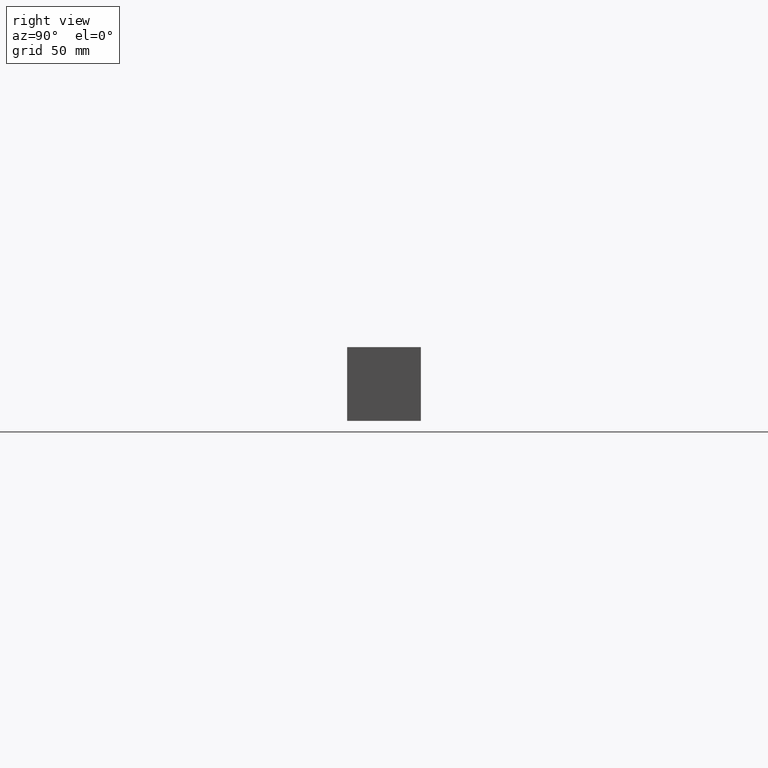
[diagram: clean part render]
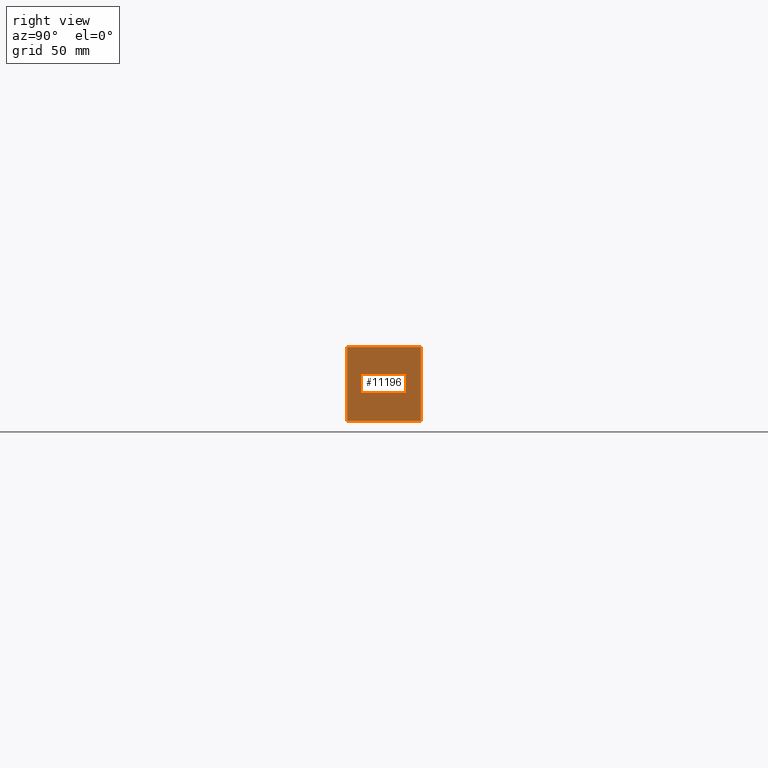
[diagram: same view with one face highlighted and labeled with its STEP entity id]
A machine part, right view. The second image highlights one B-rep face of the part: STEP entity #11196.
In plain terms, the highlighted planar face has unit normal (1, 0, 0).
Its self-contained STEP definition (entity closure, byte-faithful):
#1073=PLANE('',#12160);
#1651=FACE_OUTER_BOUND('',#2320,.T.);
#2320=EDGE_LOOP('',(#10149,#10150,#10151,#10152));
#2591=LINE('',#17185,#3404);
#3155=LINE('',#20170,#3968);
#3156=LINE('',#20173,#3969);
#3157=LINE('',#20174,#3970);
#3404=VECTOR('',#12525,10.);
#3968=VECTOR('',#14867,10.);
#3969=VECTOR('',#14870,10.);
#3970=VECTOR('',#14871,10.);
#4587=VERTEX_POINT('',#17182);
#4588=VERTEX_POINT('',#17184);
#5376=VERTEX_POINT('',#20168);
#5377=VERTEX_POINT('',#20172);
#5835=EDGE_CURVE('',#4587,#4588,#2591,.T.);
#6983=EDGE_CURVE('',#5376,#4588,#3155,.T.);
#6984=EDGE_CURVE('',#5377,#5376,#3156,.T.);
#6985=EDGE_CURVE('',#5377,#4587,#3157,.T.);
#10149=ORIENTED_EDGE('',*,*,#6984,.T.);
#10150=ORIENTED_EDGE('',*,*,#6983,.T.);
#10151=ORIENTED_EDGE('',*,*,#5835,.F.);
#10152=ORIENTED_EDGE('',*,*,#6985,.F.);
#11196=ADVANCED_FACE('',(#1651),#1073,.T.);
#12160=AXIS2_PLACEMENT_3D('',#20171,#14868,#14869);
#12525=DIRECTION('',(0.,1.,0.));
#14867=DIRECTION('',(0.,0.,1.));
#14868=DIRECTION('center_axis',(1.,0.,0.));
#14869=DIRECTION('ref_axis',(0.,1.,0.));
#14870=DIRECTION('',(0.,1.,0.));
#14871=DIRECTION('',(0.,0.,1.));
#17182=CARTESIAN_POINT('',(498.475,0.,50.8));
#17184=CARTESIAN_POINT('',(498.475,50.8,50.8));
#17185=CARTESIAN_POINT('',(498.475,0.,50.8));
#20168=CARTESIAN_POINT('',(498.475,50.8,0.));
#20170=CARTESIAN_POINT('',(498.475,50.8,0.));
#20171=CARTESIAN_POINT('Origin',(498.475,0.,0.));
#20172=CARTESIAN_POINT('',(498.475,0.,0.));
#20173=CARTESIAN_POINT('',(498.475,0.,0.));
#20174=CARTESIAN_POINT('',(498.475,0.,0.));